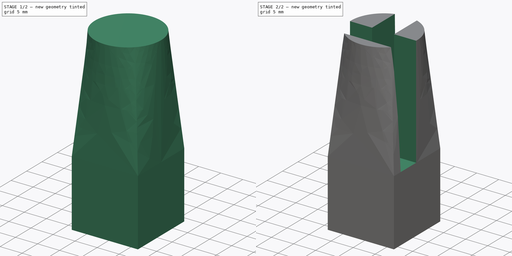
[diagram: build sequence overview — one tinted view per stage of 2, left to right]
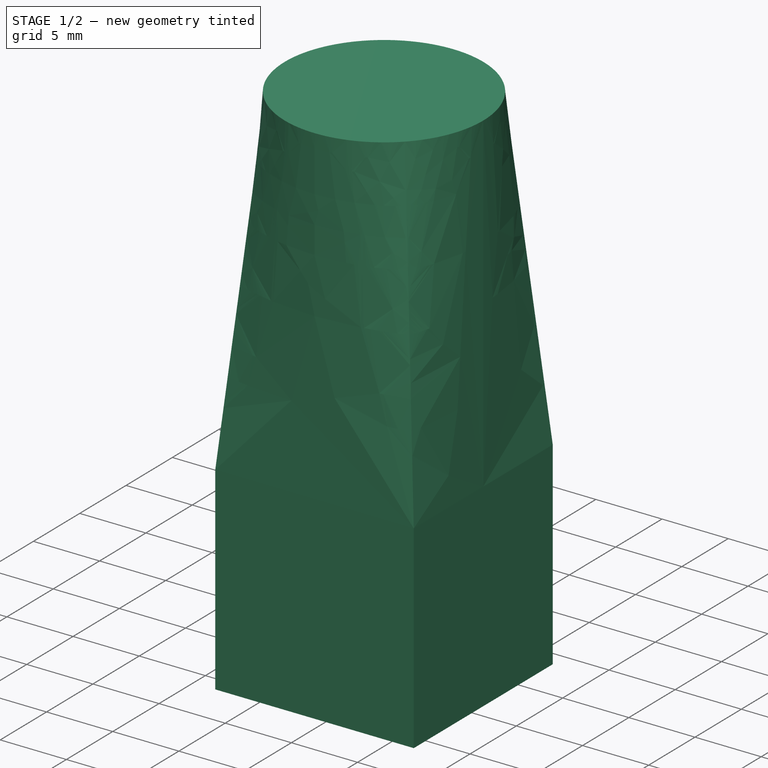
[diagram: stage 1 of 2 — iso view after this stage's code; geometry added in this stage tinted green]
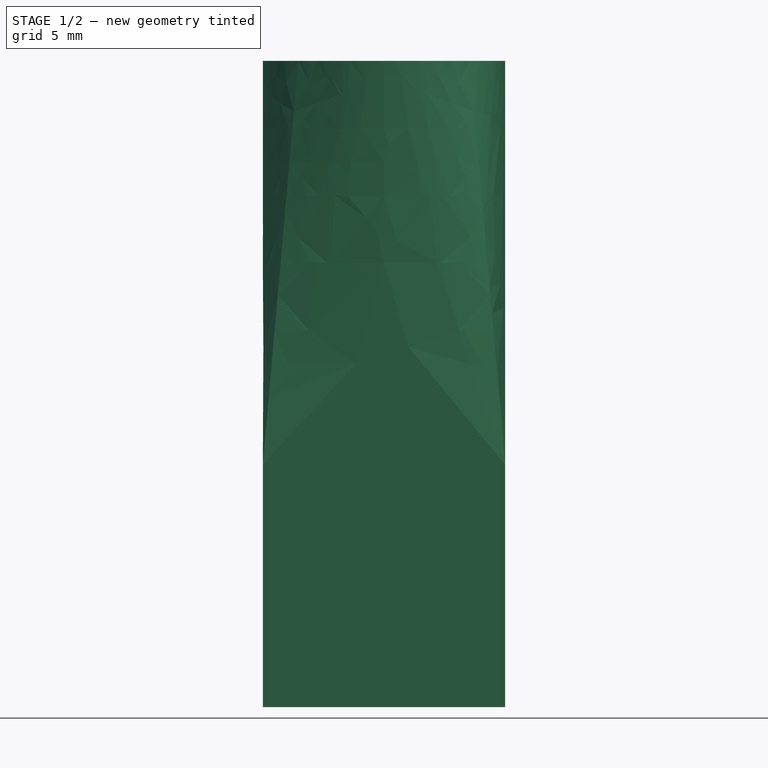
[diagram: stage 1 of 2 — front view after this stage's code; geometry added in this stage tinted green]
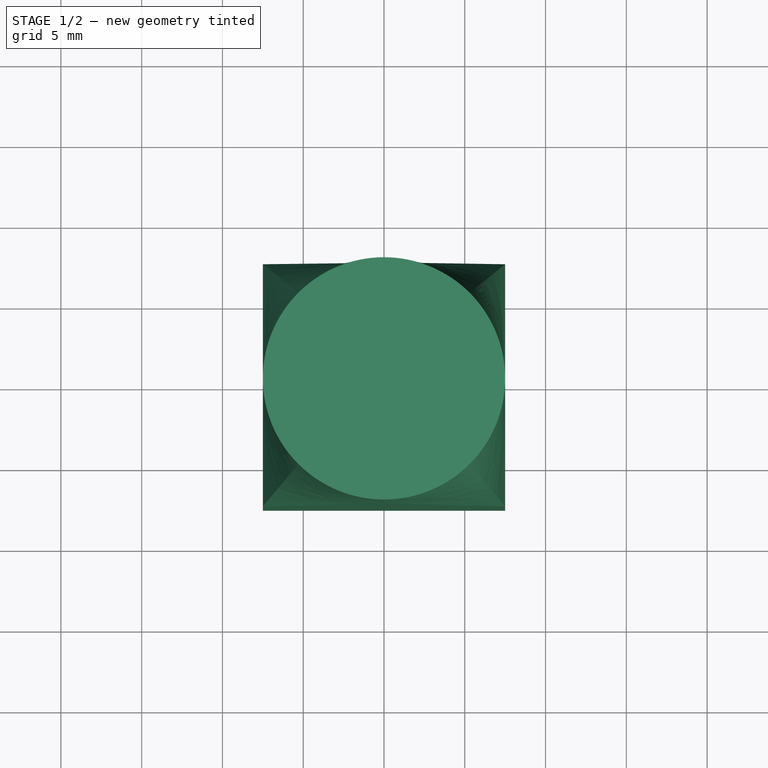
[diagram: stage 1 of 2 — top view after this stage's code; geometry added in this stage tinted green]
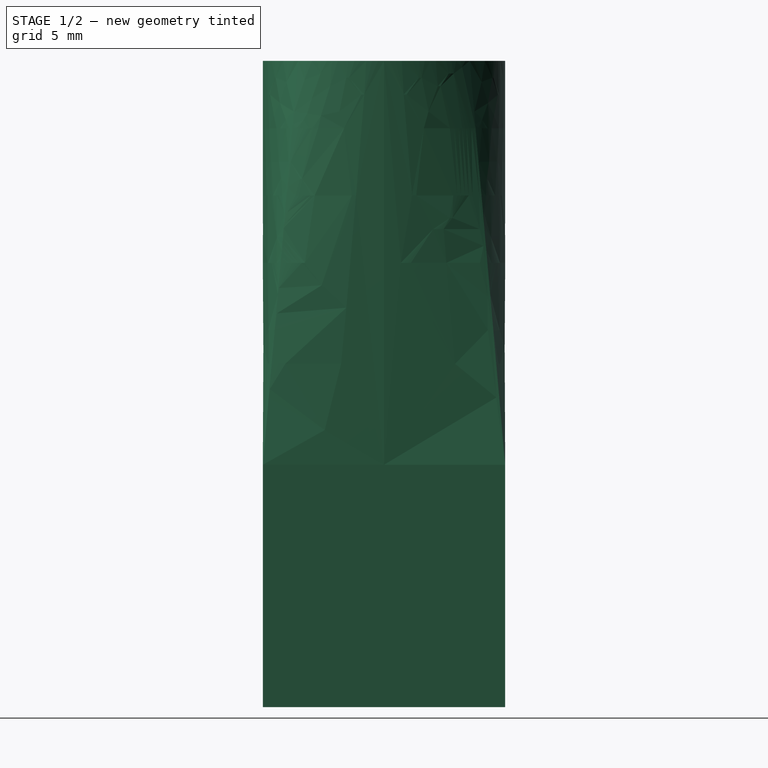
[diagram: stage 1 of 2 — right view after this stage's code; geometry added in this stage tinted green]
FCSTD DOCUMENT  (FreeCAD 1.0R39319 (Git))
Label: TailFuselageConnector
License: All rights reserved
LicenseURL: https://en.wikipedia.org/wiki/All_rights_reserved
objects: Sketcher::SketchObject×5, PartDesign::AdditiveLoft×2, PartDesign::Pocket×2, PartDesign::Body×1
note: 23 computed .brp shape members not serialized (recipe doc carries the construction recipe); baked Part::Feature solids carry a one-line shape summary decoded from their .brp

FEATURE [Sketcher::SketchObject] Sketch  label="Square"
  ArcFitTolerance = 1e-06
  AttachmentSupport = -> [XY_Plane]
  FullyConstrained = true
  MakeInternals = false
  MapMode = 5
  sketch-geometry (5):
    g0: LineSegment StartX=-7.5 StartY=-7.5 StartZ=0 EndX=7.5 EndY=-7.5 EndZ=0
    g1: LineSegment StartX=7.5 StartY=-7.5 StartZ=0 EndX=7.5 EndY=7.5 EndZ=0
    g2: LineSegment StartX=7.5 StartY=7.5 StartZ=0 EndX=-7.5 EndY=7.5 EndZ=0
    g3: LineSegment StartX=-7.5 StartY=7.5 StartZ=0 EndX=-7.5 EndY=-7.5 EndZ=0
    g4: GeomPoint [constr] X=0 Y=0 Z=0
  constraints (12):
    c: Coincident(g0,g1)
    c: Coincident(g1,g2)
    c: Coincident(g2,g3)
    c: Coincident(g3,g0)
    c: Horizontal(g0)
    c: Horizontal(g2)
    c: Vertical(g1)
    c: Vertical(g3)
    c: Symmetric(g2,g0,g4)
    c: Distance(g1,g3) = 15
    c: Distance(g0,g2) = 15
    c: Coincident(g4,g-1)
FEATURE [Sketcher::SketchObject] Sketch001  label="Circle"
  ArcFitTolerance = 1e-06
  AttachmentOffset = pos=(0,0,25) rot=(0,0,1;0rad)
  AttachmentSupport = -> [XY_Plane]
  FullyConstrained = true
  MakeInternals = false
  MapMode = 5
  Placement = pos=(0,0,25) rot=(0,0,1;0rad)
  sketch-geometry (1):
    g0: Circle CenterX=0 CenterY=0 CenterZ=0 NormalX=0 NormalY=0 NormalZ=1 AngleXU=0 Radius=7.5
  constraints (2):
    c: Diameter(g0) = 15
    c: Coincident(g0,g-1)
FEATURE [Sketcher::SketchObject] Sketch002  label="Attachment Square"
  ArcFitTolerance = 1e-06
  AttachmentOffset = pos=(0,0,-15) rot=(0,0,1;0rad)
  AttachmentSupport = -> [XY_Plane]
  FullyConstrained = true
  MakeInternals = false
  MapMode = 5
  Placement = pos=(0,0,-15) rot=(0,0,1;0rad)
  sketch-geometry (5):
    g0: LineSegment StartX=-7.5 StartY=-7.5 StartZ=0 EndX=7.5 EndY=-7.5 EndZ=0
    g1: LineSegment StartX=7.5 StartY=-7.5 StartZ=0 EndX=7.5 EndY=7.5 EndZ=0
    g2: LineSegment StartX=7.5 StartY=7.5 StartZ=0 EndX=-7.5 EndY=7.5 EndZ=0
    g3: LineSegment StartX=-7.5 StartY=7.5 StartZ=0 EndX=-7.5 EndY=-7.5 EndZ=0
    g4: GeomPoint [constr] X=0 Y=0 Z=0
  constraints (12):
    c: Coincident(g0,g1)
    c: Coincident(g1,g2)
    c: Coincident(g2,g3)
    c: Coincident(g3,g0)
    c: Horizontal(g0)
    c: Horizontal(g2)
    c: Vertical(g1)
    c: Vertical(g3)
    c: Symmetric(g2,g0,g4)
    c: Distance(g1,g3) = 15
    c: Distance(g0,g2) = 15
    c: Coincident(g4,g-1)
FEATURE [PartDesign::AdditiveLoft] AdditiveLoft
  Closed = true
  Profile = -> Sketch002
  Refine = true
  Ruled = false
  Sections = -> [Sketch]
  Suppressed = false
FEATURE [PartDesign::AdditiveLoft] AdditiveLoft001
  BaseFeature = -> AdditiveLoft
  Closed = false
  Profile = -> Sketch
  Refine = true
  Ruled = false
  Sections = -> [Sketch001]
  Suppressed = false
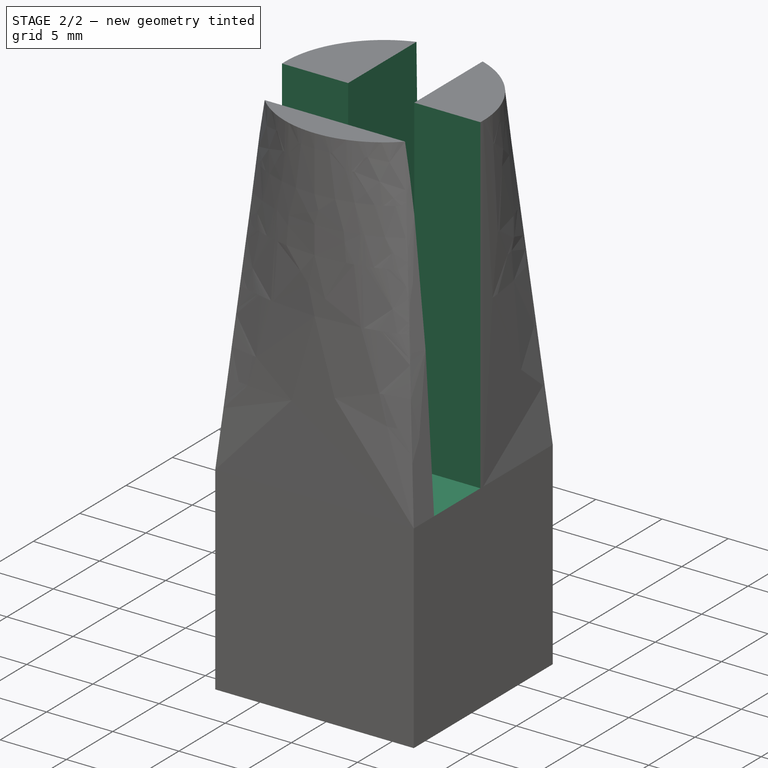
[diagram: stage 2 of 2 — iso view after this stage's code; geometry added in this stage tinted green]
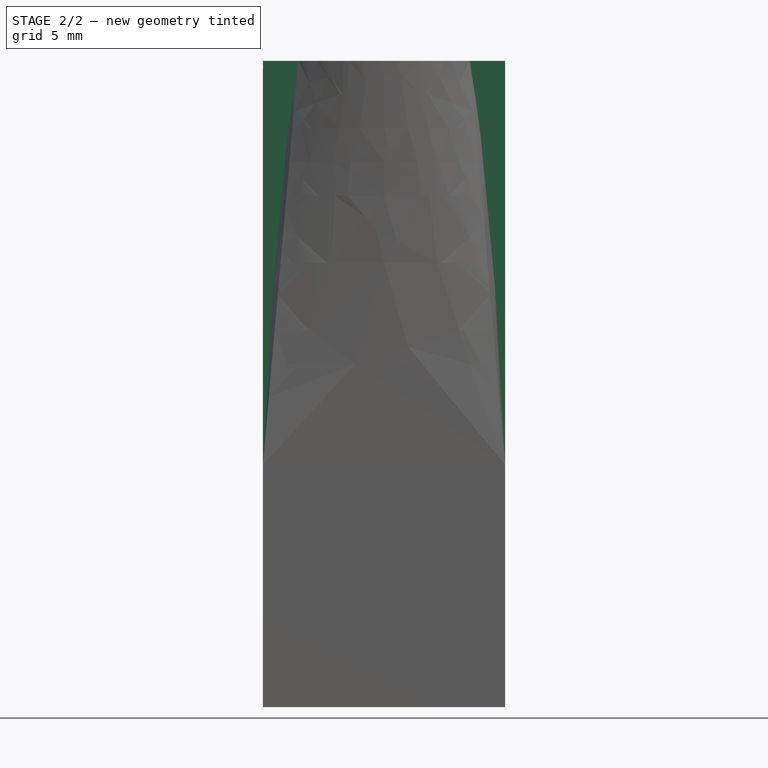
[diagram: stage 2 of 2 — front view after this stage's code; geometry added in this stage tinted green]
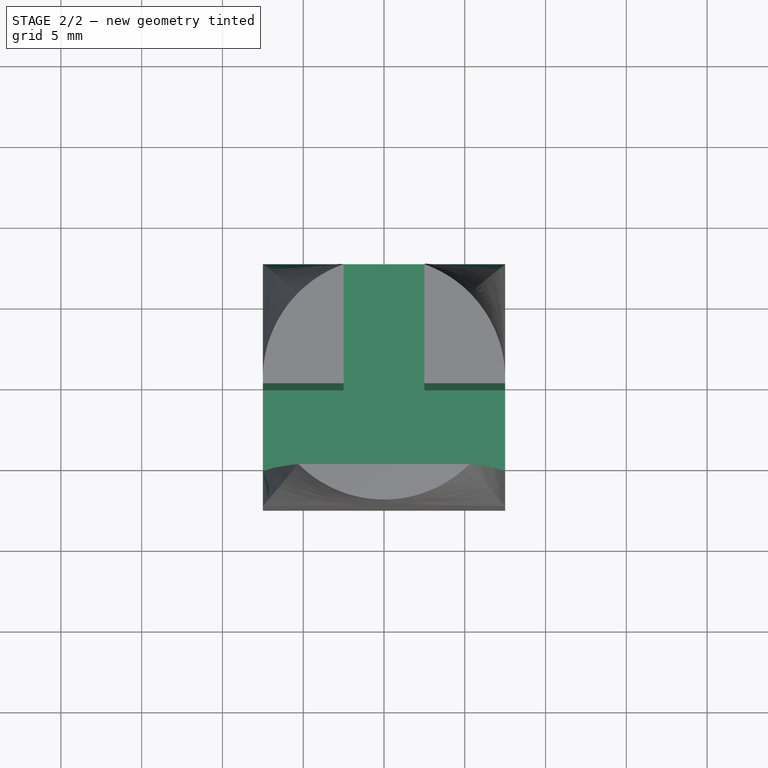
[diagram: stage 2 of 2 — top view after this stage's code; geometry added in this stage tinted green]
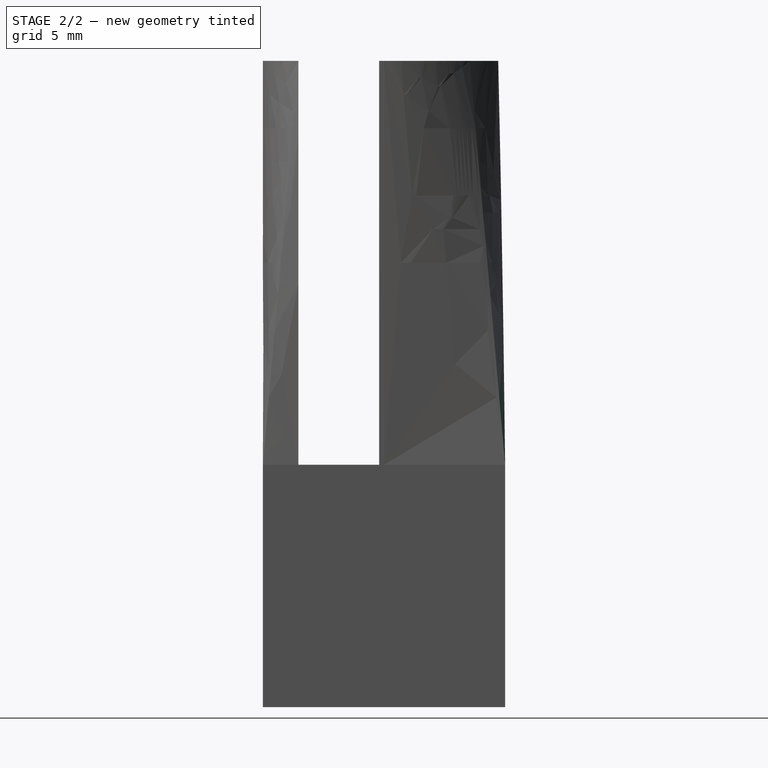
[diagram: stage 2 of 2 — right view after this stage's code; geometry added in this stage tinted green]
FEATURE [Sketcher::SketchObject] Sketch003
  ArcFitTolerance = 1e-06
  AttachmentSupport = -> [AdditiveLoft001]
  ExternalGeometry = -> [AdditiveLoft001]
  FullyConstrained = true
  MakeInternals = false
  MapMode = 5
  Placement = pos=(0,0,-15) rot=(1,0,0;3.14159rad)
  sketch-geometry (16):
    g0: LineSegment StartX=-4.93934 StartY=6 StartZ=0 EndX=4.93934 EndY=6 EndZ=0
    g1: LineSegment StartX=4.93934 StartY=6 StartZ=0 EndX=0 EndY=1.06066 EndZ=0
    g2: LineSegment StartX=0 StartY=1.06066 StartZ=0 EndX=-4.93934 EndY=6 EndZ=0
    g3: LineSegment StartX=6 StartY=4.93934 StartZ=0 EndX=1.06066 EndY=0 EndZ=0
    g4: LineSegment StartX=1.06066 StartY=0 StartZ=0 EndX=6 EndY=-4.93934 EndZ=0
    g5: LineSegment StartX=6 StartY=-4.93934 StartZ=0 EndX=6 EndY=4.93934 EndZ=0
    g6: LineSegment StartX=-4.93934 StartY=-6 StartZ=0 EndX=0 EndY=-1.06066 EndZ=0
    g7: LineSegment StartX=0 StartY=-1.06066 StartZ=0 EndX=4.93934 EndY=-6 EndZ=0
    g8: LineSegment StartX=4.93934 StartY=-6 StartZ=0 EndX=-4.93934 EndY=-6 EndZ=0
    g9: LineSegment StartX=-6 StartY=4.93934 StartZ=0 EndX=-6 EndY=-4.93934 EndZ=0
    g10: LineSegment StartX=-6 StartY=-4.93934 StartZ=0 EndX=-1.06066 EndY=0 EndZ=0
    g11: LineSegment StartX=-1.06066 StartY=0 StartZ=0 EndX=-6 EndY=4.93934 EndZ=0
    g12: LineSegment [constr] StartX=0 StartY=1.06066 StartZ=0 EndX=-1.06066 EndY=0 EndZ=0
    g13: LineSegment [constr] StartX=0 StartY=-1.06066 StartZ=0 EndX=-1.06066 EndY=0 EndZ=0
    g14: LineSegment [constr] StartX=1.06066 StartY=0 StartZ=0 EndX=0 EndY=-1.06066 EndZ=0
    g15: LineSegment [constr] StartX=1.06066 StartY=0 StartZ=0 EndX=0 EndY=1.06066 EndZ=0
  constraints (44):
    c: Horizontal(g0)
    c: Coincident(g0,g1)
    c: PointOnObject(g1,g-2)
    c: Coincident(g1,g2)
    c: Coincident(g2,g0)
    c: PointOnObject(g3,g-1)
    c: Coincident(g3,g4)
    c: Coincident(g4,g5)
    c: Coincident(g5,g3)
    c: PointOnObject(g6,g-2)
    c: Coincident(g6,g7)
    c: Coincident(g7,g8)
    c: Coincident(g8,g6)
    c: Horizontal(g8)
    c: Vertical(g9)
    c: Coincident(g9,g10)
    c: PointOnObject(g10,g-1)
    c: Coincident(g10,g11)
    c: Coincident(g11,g9)
    c: Equal(g6,g10)
    c: Equal(g10,g11)
    c: Equal(g11,g1)
    c: Equal(g1,g2)
    c: Equal(g2,g4)
    c: Equal(g4,g3)
    c: Equal(g0,g9)
    c: Equal(g9,g8)
    c: Equal(g8,g5)
    c: Parallel(g3,g1)
    c: Parallel(g2,g11)
    c: Parallel(g6,g10)
    c: Coincident(g12,g1)
    c: Coincident(g12,g10)
    c: Coincident(g13,g6)
    c: Coincident(g13,g10)
    c: Coincident(g14,g3)
    c: Coincident(g14,g6)
    c: Coincident(g15,g3)
    c: Coincident(g15,g1)
    c: Equal(g15,g13)
    c: Equal(g13,g12)
    c: Perpendicular(g14,g13)
    c: Distance(g10,g6) = 1.5
    c: Distance(g-3,g0) = 1.5
FEATURE [PartDesign::Pocket] Pocket
  BaseFeature = -> AdditiveLoft001
  Direction = (0,0,1)
  Length = 12
  Length2 = 5
  Profile = -> Sketch003
  ReferenceAxis = -> Sketch003 [N_Axis]
  Refine = true
  Suppressed = false
  Type = 0
FEATURE [Sketcher::SketchObject] Sketch004
  ArcFitTolerance = 1e-06
  AttachmentSupport = -> [Pocket]
  ExternalGeometry = -> [Pocket]
  FullyConstrained = true
  MakeInternals = false
  MapMode = 5
  Placement = pos=(0,0,25) rot=(0,0,1;0rad)
  sketch-geometry (9):
    g0: LineSegment StartX=-7.5 StartY=-5.3033 StartZ=0 EndX=7.5 EndY=-5.3033 EndZ=0
    g1: LineSegment StartX=7.5 StartY=-5.3033 StartZ=0 EndX=7.5 EndY=-0.303301 EndZ=0
    g2: LineSegment StartX=7.5 StartY=-0.303301 StartZ=0 EndX=-7.5 EndY=-0.303301 EndZ=0
    g3: LineSegment StartX=-7.5 StartY=-0.303301 StartZ=0 EndX=-7.5 EndY=-5.3033 EndZ=0
    g4: LineSegment StartX=-2.5 StartY=-0.303301 StartZ=0 EndX=2.5 EndY=-0.303301 EndZ=0
    g5: LineSegment StartX=2.5 StartY=-0.303301 StartZ=0 EndX=2.5 EndY=7.5 EndZ=0
    g6: LineSegment StartX=2.5 StartY=7.5 StartZ=0 EndX=-2.5 EndY=7.5 EndZ=0
    g7: LineSegment StartX=-2.5 StartY=7.5 StartZ=0 EndX=-2.5 EndY=-0.303301 EndZ=0
    g8: GeomPoint X=0 Y=7.5 Z=0
  constraints (25):
    c: Coincident(g0,g1)
    c: Coincident(g1,g2)
    c: Coincident(g2,g3)
    c: Coincident(g3,g0)
    c: Horizontal(g0)
    c: Horizontal(g2)
    c: Vertical(g1)
    c: Vertical(g3)
    c: PointOnObject(g0,g-4)
    c: PointOnObject(g1,g-6)
    c: PointOnObject(g-8,g0)
    c: DistanceY(g1,g1) = 5
    c: Coincident(g4,g5)
    c: Coincident(g5,g6)
    c: Coincident(g6,g7)
    c: Coincident(g7,g4)
    c: Horizontal(g4)
    c: Horizontal(g6)
    c: Vertical(g5)
    c: Vertical(g7)
    c: PointOnObject(g4,g2)
    c: PointOnObject(g5,g-3)
    c: DistanceX(g6,g6) = 5
    c: Symmetric(g6,g6,g8)
    c: PointOnObject(g8,g-2)
FEATURE [PartDesign::Pocket] Pocket001
  BaseFeature = -> Pocket
  Direction = (0,0,-1)
  Length = 25
  Length2 = 5
  Profile = -> Sketch004
  ReferenceAxis = -> Sketch004 [N_Axis]
  Refine = true
  Suppressed = false
  Type = 0
FEATURE [PartDesign::Body] Body
  AllowCompound = false
  Group = -> [Sketch,Sketch001,Sketch002,AdditiveLoft,AdditiveLoft001,Sketch003,Pocket,Sketch004,Pocket001]
  Origin = -> Origin
  Tip = -> Pocket001
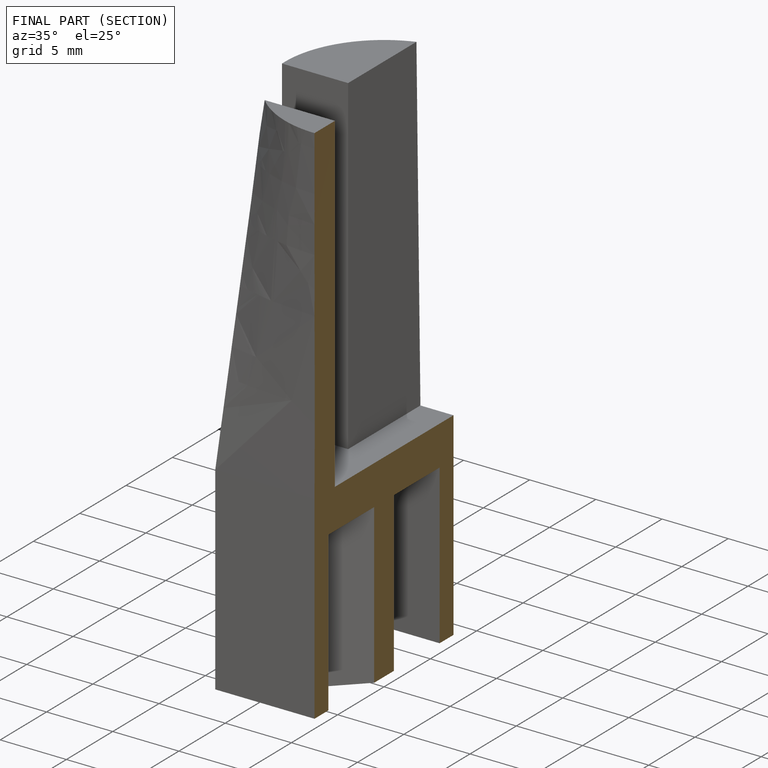
[diagram: finished part — half-section view (interior)]
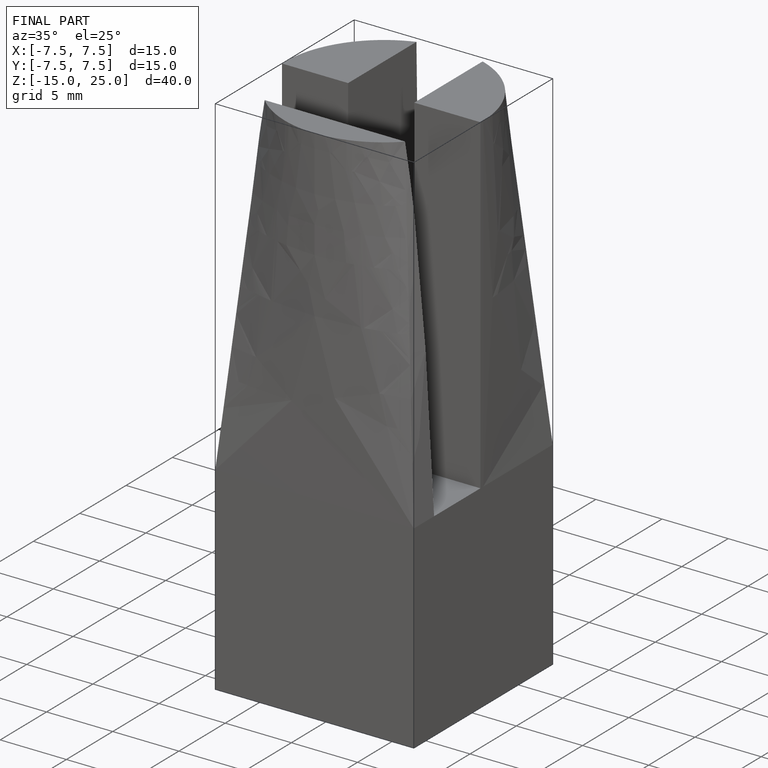
[diagram: finished part — iso view with bounding-box wireframe]
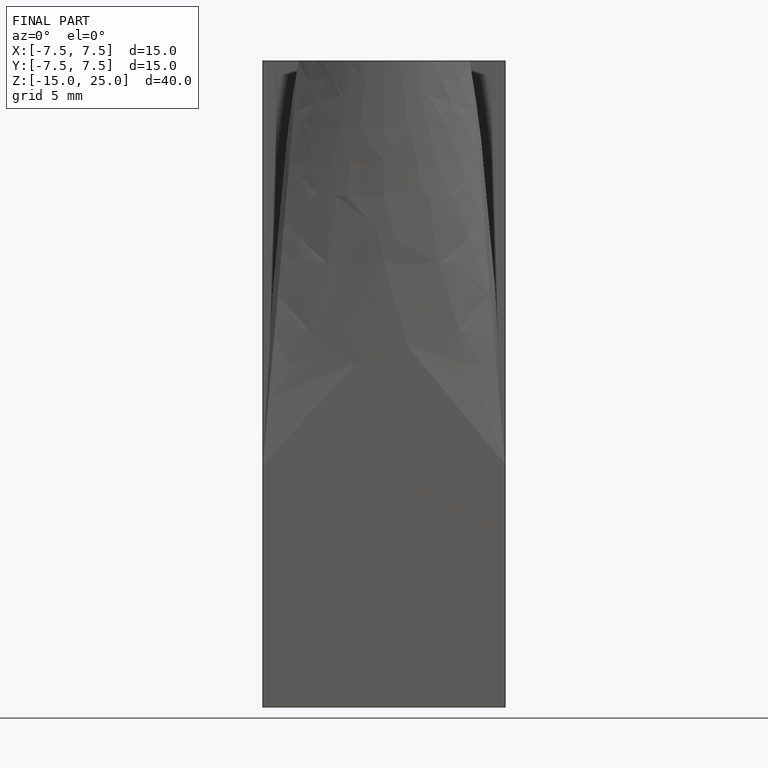
[diagram: finished part — front view with bounding-box wireframe]
